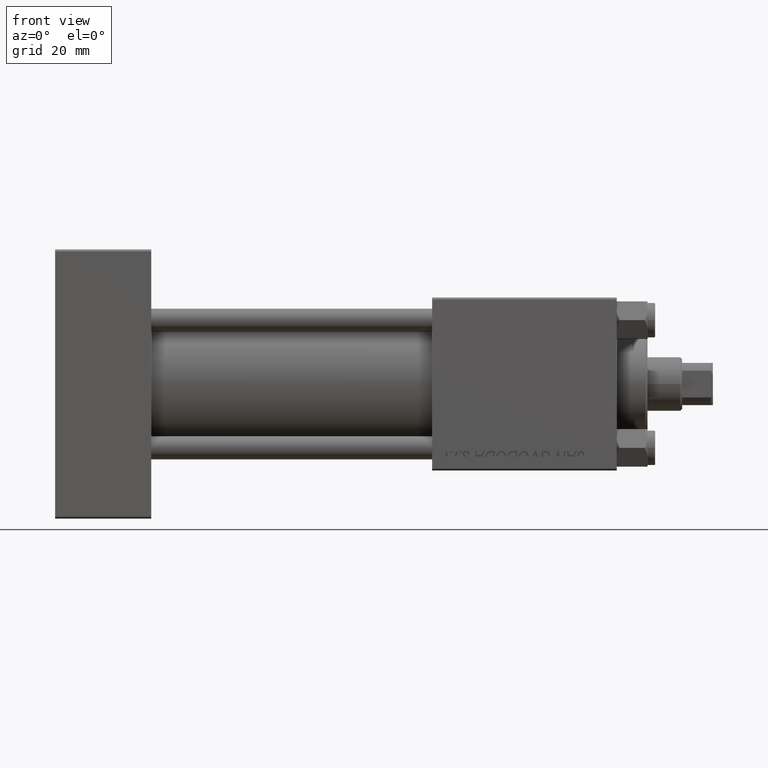
[diagram: clean part render]
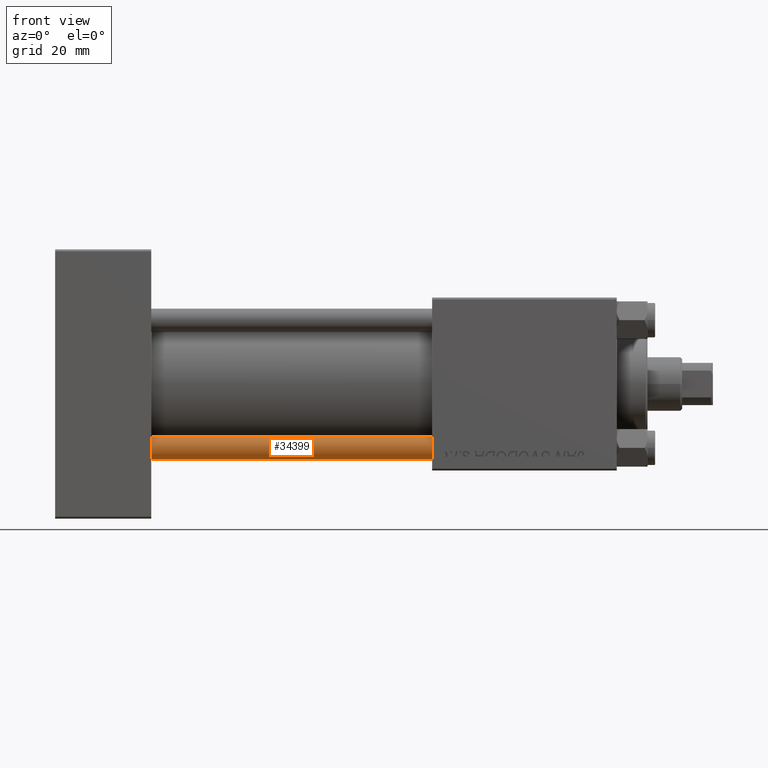
[diagram: same view with one face highlighted and labeled with its STEP entity id]
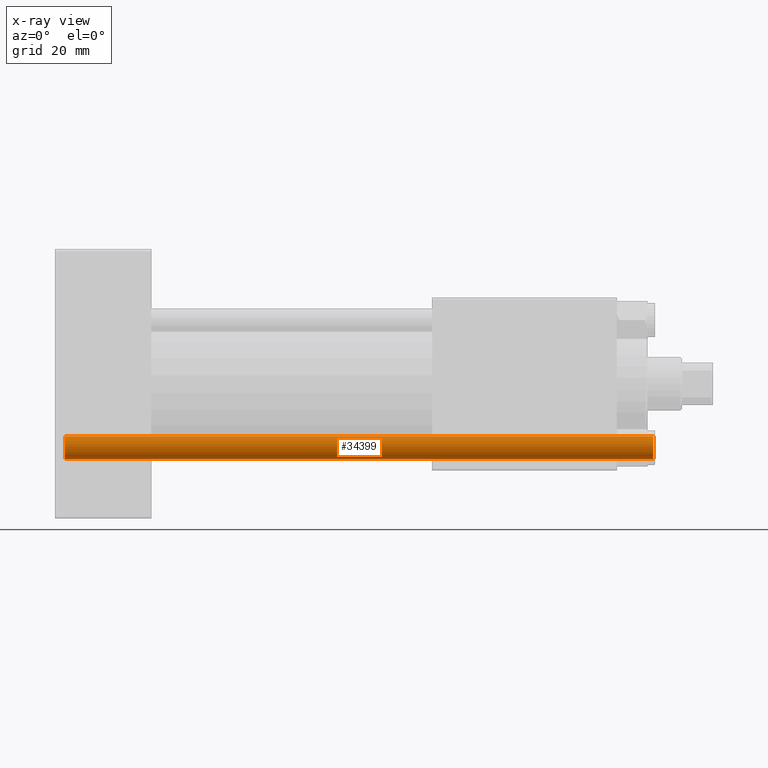
[diagram: x-ray of the same camera — body ghosted, the highlighted face saturated]
A machine part, front view. The second image highlights one B-rep face of the part: STEP entity #34399.
The next image is the same camera in x-ray: the body ghosted, the highlighted face saturated — about 0% of this face is hidden behind the body in this view.
In plain terms, the highlighted cylindrical surface (edge-blend (fillet) strip) has radius 3 mm, axis along (1, -0, -0).
Its self-contained STEP definition (entity closure, byte-faithful):
#267 = ORIENTED_EDGE ( 'NONE', *, *, #41238, .T. ) ;
#1111 = CARTESIAN_POINT ( 'NONE',  ( -3.000000000000000444, 0.000000000000000000, 153.5000000000000284 ) ) ;
#4299 = AXIS2_PLACEMENT_3D ( 'NONE', #16526, #12960, #20562 ) ;
#4803 = EDGE_LOOP ( 'NONE', ( #48351, #267, #42616, #38530 ) ) ;
#5071 = VERTEX_POINT ( 'NONE', #48142 ) ;
#7512 = CIRCLE ( 'NONE', #4299, 3.000000000000000444 ) ;
#8681 = LINE ( 'NONE', #24089, #13193 ) ;
#9914 = DIRECTION ( 'NONE',  ( -1.000000000000000000, 0.000000000000000000, 0.000000000000000000 ) ) ;
#11535 = DIRECTION ( 'NONE',  ( -0.000000000000000000, -0.000000000000000000, -1.000000000000000000 ) ) ;
#11694 = DIRECTION ( 'NONE',  ( 1.000000000000000000, 0.000000000000000000, 0.000000000000000000 ) ) ;
#12253 = VECTOR ( 'NONE', #11535, 1000.000000000000000 ) ;
#12960 = DIRECTION ( 'NONE',  ( -0.000000000000000000, -0.000000000000000000, 1.000000000000000000 ) ) ;
#13193 = VECTOR ( 'NONE', #39486, 1000.000000000000000 ) ;
#13204 = CARTESIAN_POINT ( 'NONE',  ( 0.000000000000000000, 0.000000000000000000, 154.0000000000000000 ) ) ;
#13773 = CARTESIAN_POINT ( 'NONE',  ( 3.000000000000000444, 3.673940397442060361E-16, 0.5000000000000281997 ) ) ;
#14102 = VERTEX_POINT ( 'NONE', #28358 ) ;
#15822 = LINE ( 'NONE', #18609, #12253 ) ;
#16526 = CARTESIAN_POINT ( 'NONE',  ( 0.000000000000000000, 0.000000000000000000, 0.5000000000000281997 ) ) ;
#17243 = CIRCLE ( 'NONE', #36578, 3.000000000000000444 ) ;
#17507 = CYLINDRICAL_SURFACE ( 'NONE', #39587, 3.000000000000000444 ) ;
#18609 = CARTESIAN_POINT ( 'NONE',  ( 3.000000000000000444, 3.673940397442060361E-16, 154.0000000000000000 ) ) ;
#20562 = DIRECTION ( 'NONE',  ( 1.000000000000000000, 0.000000000000000000, 0.000000000000000000 ) ) ;
#24089 = CARTESIAN_POINT ( 'NONE',  ( -3.000000000000000444, 0.000000000000000000, 154.0000000000000000 ) ) ;
#25296 = EDGE_CURVE ( 'NONE', #14102, #40190, #15822, .T. ) ;
#28358 = CARTESIAN_POINT ( 'NONE',  ( 3.000000000000000444, 3.673940397442060361E-16, 153.5000000000000284 ) ) ;
#32392 = FACE_OUTER_BOUND ( 'NONE', #4803, .T. ) ;
#34399 = ADVANCED_FACE ( 'NONE', ( #32392 ), #17507, .T. ) ;
#34652 = DIRECTION ( 'NONE',  ( 0.000000000000000000, 0.000000000000000000, -1.000000000000000000 ) ) ;
#35078 = VERTEX_POINT ( 'NONE', #1111 ) ;
#35385 = CARTESIAN_POINT ( 'NONE',  ( 0.000000000000000000, 0.000000000000000000, 153.5000000000000284 ) ) ;
#36578 = AXIS2_PLACEMENT_3D ( 'NONE', #35385, #34652, #11694 ) ;
#38530 = ORIENTED_EDGE ( 'NONE', *, *, #42666, .T. ) ;
#39486 = DIRECTION ( 'NONE',  ( -0.000000000000000000, -0.000000000000000000, -1.000000000000000000 ) ) ;
#39587 = AXIS2_PLACEMENT_3D ( 'NONE', #13204, #44513, #9914 ) ;
#40190 = VERTEX_POINT ( 'NONE', #13773 ) ;
#40392 = EDGE_CURVE ( 'NONE', #35078, #5071, #8681, .T. ) ;
#41238 = EDGE_CURVE ( 'NONE', #14102, #35078, #17243, .T. ) ;
#42616 = ORIENTED_EDGE ( 'NONE', *, *, #40392, .T. ) ;
#42666 = EDGE_CURVE ( 'NONE', #5071, #40190, #7512, .T. ) ;
#44513 = DIRECTION ( 'NONE',  ( -0.000000000000000000, -0.000000000000000000, -1.000000000000000000 ) ) ;
#48142 = CARTESIAN_POINT ( 'NONE',  ( -3.000000000000000444, 0.000000000000000000, 0.5000000000000281997 ) ) ;
#48351 = ORIENTED_EDGE ( 'NONE', *, *, #25296, .F. ) ;